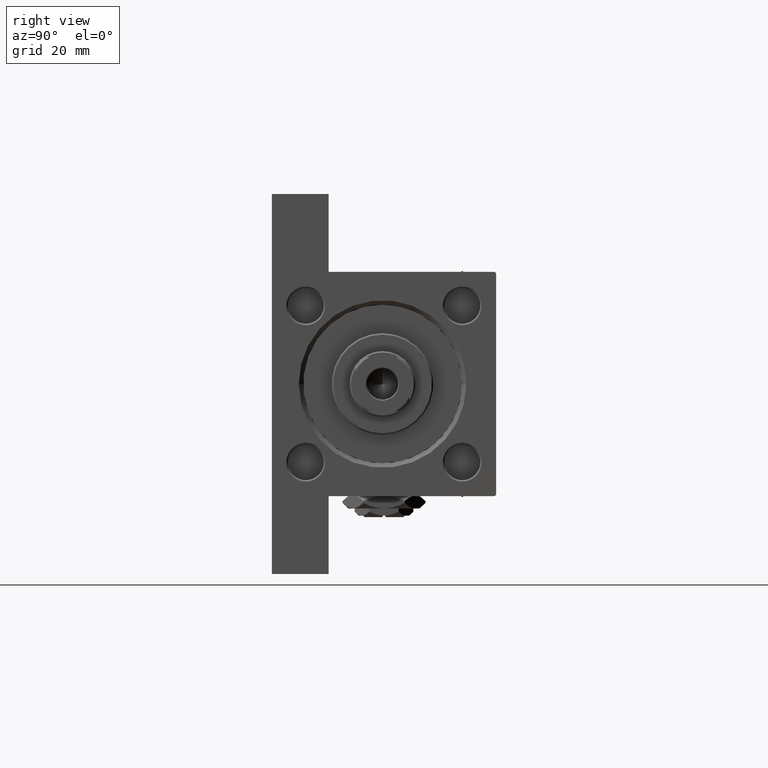
[diagram: clean part render]
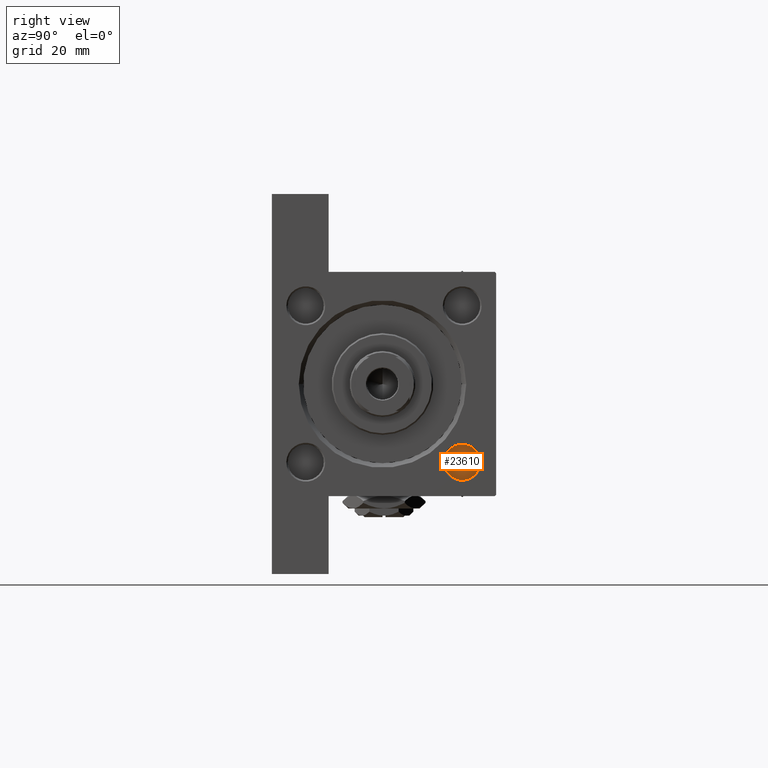
[diagram: same view with one face highlighted and labeled with its STEP entity id]
A machine part, right view. The second image highlights one B-rep face of the part: STEP entity #23610.
In plain terms, the highlighted planar face has unit normal (1, 0, 0).
Its self-contained STEP definition (entity closure, byte-faithful):
#238 = ORIENTED_EDGE ( 'NONE', *, *, #31863, .T. ) ;
#1052 = DIRECTION ( 'NONE',  ( 1.000000000000000000, 0.000000000000000000, 0.000000000000000000 ) ) ;
#2610 = CARTESIAN_POINT ( 'NONE',  ( 142.0000000000000000, 26.14999999999999858, 26.15000000000000213 ) ) ;
#5706 = EDGE_LOOP ( 'NONE', ( #238, #7467 ) ) ;
#7467 = ORIENTED_EDGE ( 'NONE', *, *, #31562, .T. ) ;
#8583 = CARTESIAN_POINT ( 'NONE',  ( 142.0000000000000000, 26.14999999999999858, 26.15000000000000213 ) ) ;
#12656 = AXIS2_PLACEMENT_3D ( 'NONE', #20259, #27047, #39071 ) ;
#12686 = AXIS2_PLACEMENT_3D ( 'NONE', #2610, #49085, #14675 ) ;
#14675 = DIRECTION ( 'NONE',  ( 0.000000000000000000, 0.000000000000000000, -1.000000000000000000 ) ) ;
#17864 = VERTEX_POINT ( 'NONE', #18022 ) ;
#18022 = CARTESIAN_POINT ( 'NONE',  ( 142.0000000000000000, 26.14999999999999858, 32.15000000000001279 ) ) ;
#20259 = CARTESIAN_POINT ( 'NONE',  ( 142.0000000000000000, 26.14999999999999858, 26.15000000000000213 ) ) ;
#23183 = PLANE ( 'NONE',  #29758 ) ;
#23610 = ADVANCED_FACE ( 'NONE', ( #46508 ), #23183, .T. ) ;
#25311 = VERTEX_POINT ( 'NONE', #28973 ) ;
#27047 = DIRECTION ( 'NONE',  ( 1.000000000000000000, 0.000000000000000000, 0.000000000000000000 ) ) ;
#28973 = CARTESIAN_POINT ( 'NONE',  ( 142.0000000000000000, 26.14999999999999858, 20.14999999999999503 ) ) ;
#29758 = AXIS2_PLACEMENT_3D ( 'NONE', #8583, #1052, #38490 ) ;
#31562 = EDGE_CURVE ( 'NONE', #17864, #25311, #35157, .T. ) ;
#31863 = EDGE_CURVE ( 'NONE', #25311, #17864, #43164, .T. ) ;
#35157 = CIRCLE ( 'NONE', #12656, 6.000000000000008882 ) ;
#38490 = DIRECTION ( 'NONE',  ( 0.000000000000000000, 0.000000000000000000, -1.000000000000000000 ) ) ;
#39071 = DIRECTION ( 'NONE',  ( 0.000000000000000000, 0.000000000000000000, -1.000000000000000000 ) ) ;
#43164 = CIRCLE ( 'NONE', #12686, 6.000000000000008882 ) ;
#46508 = FACE_OUTER_BOUND ( 'NONE', #5706, .T. ) ;
#49085 = DIRECTION ( 'NONE',  ( 1.000000000000000000, 0.000000000000000000, 0.000000000000000000 ) ) ;